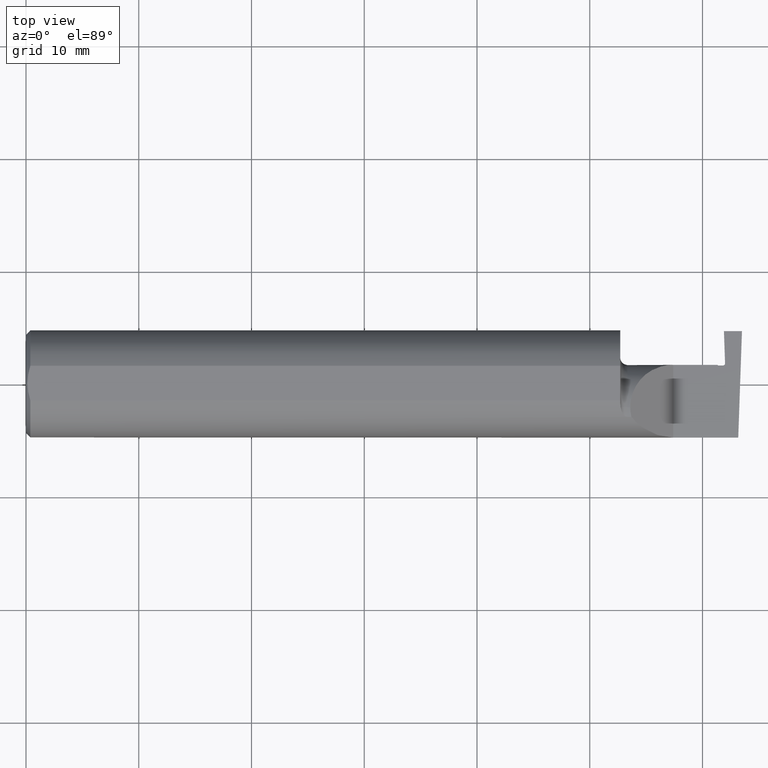
[diagram: clean part render]
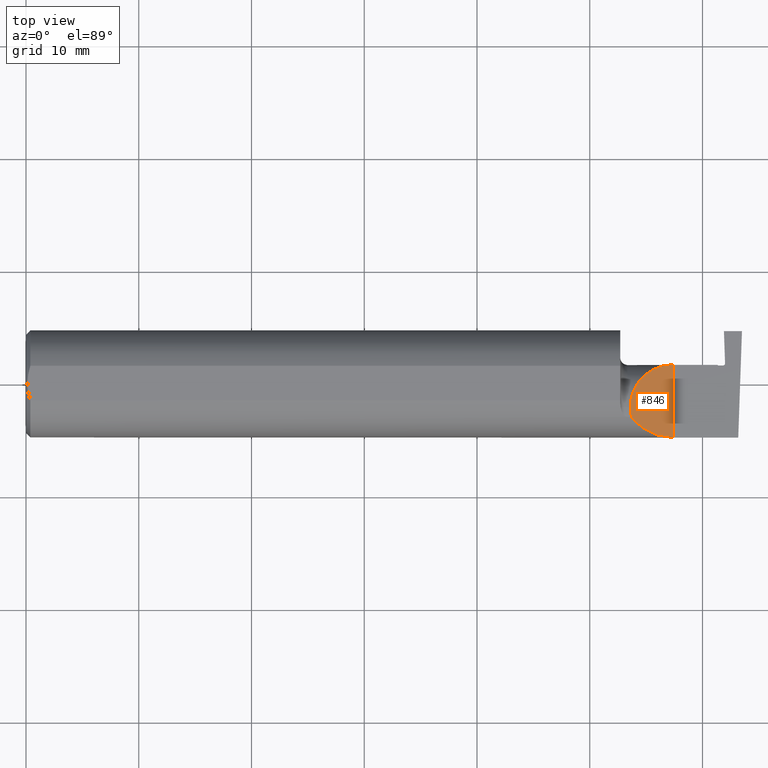
[diagram: same view with one face highlighted and labeled with its STEP entity id]
A machine part, top view. The second image highlights one B-rep face of the part: STEP entity #846.
In plain terms, the highlighted planar face has unit normal (-0.7071, 0, -0.7071).
Its self-contained STEP definition (entity closure, byte-faithful):
#5 = CARTESIAN_POINT ( 'NONE',  ( 2.110000000000000764, -0.09477667630339427218, 0.1499999999999999944 ) ) ;
#36 = CARTESIAN_POINT ( 'NONE',  ( 2.260000000000000231, -0.1873499999999999888, 2.939152317953647352E-17 ) ) ;
#45 = EDGE_LOOP ( 'NONE', ( #527, #342, #433, #863 ) ) ;
#64 = CARTESIAN_POINT ( 'NONE',  ( 2.110000000000001208, -0.08334999999999996578, 0.1499999999999999944 ) ) ;
#131 = CARTESIAN_POINT ( 'NONE',  ( 2.110000000000001208, -0.08334999999999996578, 0.1499999999999999944 ) ) ;
#153 =( BOUNDED_CURVE ( )  B_SPLINE_CURVE ( 3, ( #36, #273, #838, #999 ),
 .UNSPECIFIED., .F., .T. ) 
 B_SPLINE_CURVE_WITH_KNOTS ( ( 4, 4 ),
 ( 4.712388980384688786, 5.606916381293135743 ),
 .UNSPECIFIED. ) 
 CURVE ( )  GEOMETRIC_REPRESENTATION_ITEM ( )  RATIONAL_B_SPLINE_CURVE ( ( 1.000000000000000000, 0.9344226172588803170, 0.9344226172588803170, 1.000000000000000000 ) ) 
 REPRESENTATION_ITEM ( '' )  );
#160 = CARTESIAN_POINT ( 'NONE',  ( 2.111300037307155986, -0.1061291577212410964, 0.1486999626928445783 ) ) ;
#214 = FACE_OUTER_BOUND ( 'NONE', #45, .T. ) ;
#220 = CARTESIAN_POINT ( 'NONE',  ( 2.172132034355964691, 0.06665000000000001479, 0.08786796564403576149 ) ) ;
#237 = EDGE_CURVE ( 'NONE', #775, #853, #667, .T. ) ;
#247 = VERTEX_POINT ( 'NONE', #716 ) ;
#273 = CARTESIAN_POINT ( 'NONE',  ( 2.202189699843949189, -0.1873500000000000443, 0.05781030015605096578 ) ) ;
#324 = DIRECTION ( 'NONE',  ( -0.000000000000000000, 1.000000000000000000, -0.000000000000000000 ) ) ;
#342 = ORIENTED_EDGE ( 'NONE', *, *, #640, .F. ) ;
#348 = VERTEX_POINT ( 'NONE', #634 ) ;
#371 =( BOUNDED_CURVE ( )  B_SPLINE_CURVE ( 3, ( #816, #160, #5, #560 ),
 .UNSPECIFIED., .F., .T. ) 
 B_SPLINE_CURVE_WITH_KNOTS ( ( 4, 4 ),
 ( 6.055147272130140479, 6.283185307179586232 ),
 .UNSPECIFIED. ) 
 CURVE ( )  GEOMETRIC_REPRESENTATION_ITEM ( )  RATIONAL_B_SPLINE_CURVE ( ( 1.000000000000000000, 0.9956712472009929815, 0.9956712472009929815, 1.000000000000000000 ) ) 
 REPRESENTATION_ITEM ( '' )  );
#404 = LINE ( 'NONE', #735, #528 ) ;
#433 = ORIENTED_EDGE ( 'NONE', *, *, #1004, .T. ) ;
#458 = CARTESIAN_POINT ( 'NONE',  ( 2.260000000000000231, 0.06665000000000002867, 2.939152317953647352E-17 ) ) ;
#527 = ORIENTED_EDGE ( 'NONE', *, *, #949, .F. ) ;
#528 = VECTOR ( 'NONE', #324, 39.37007874015748143 ) ;
#560 = CARTESIAN_POINT ( 'NONE',  ( 2.110000000000001208, -0.08334999999999996578, 0.1499999999999999944 ) ) ;
#634 = CARTESIAN_POINT ( 'NONE',  ( 2.113883229301070532, -0.1172600179964009143, 0.1461167706989301707 ) ) ;
#640 = EDGE_CURVE ( 'NONE', #247, #348, #153, .T. ) ;
#667 =( BOUNDED_CURVE ( )  B_SPLINE_CURVE ( 3, ( #131, #1011, #220, #933 ),
 .UNSPECIFIED., .F., .T. ) 
 B_SPLINE_CURVE_WITH_KNOTS ( ( 4, 4 ),
 ( 0.000000000000000000, 1.570796326794896558 ),
 .UNSPECIFIED. ) 
 CURVE ( )  GEOMETRIC_REPRESENTATION_ITEM ( )  RATIONAL_B_SPLINE_CURVE ( ( 1.000000000000000000, 0.8047378541243649375, 0.8047378541243649375, 1.000000000000000000 ) ) 
 REPRESENTATION_ITEM ( '' )  );
#703 = CARTESIAN_POINT ( 'NONE',  ( 2.260000000000000231, -0.2000000000000000111, 2.939152317953647352E-17 ) ) ;
#715 = DIRECTION ( 'NONE',  ( -0.7071067811865454633, 0.000000000000000000, 0.7071067811865496822 ) ) ;
#716 = CARTESIAN_POINT ( 'NONE',  ( 2.260000000000000231, -0.1873499999999999888, 2.939152317953647352E-17 ) ) ;
#735 = CARTESIAN_POINT ( 'NONE',  ( 2.260000000000000231, -0.2000000000000000111, 2.939152317953647352E-17 ) ) ;
#775 = VERTEX_POINT ( 'NONE', #64 ) ;
#797 = PLANE ( 'NONE',  #1041 ) ;
#816 = CARTESIAN_POINT ( 'NONE',  ( 2.113883229301070532, -0.1172600179964009143, 0.1461167706989301707 ) ) ;
#838 = CARTESIAN_POINT ( 'NONE',  ( 2.150065971957467070, -0.1623470442677542591, 0.1099340280425335908 ) ) ;
#846 = ADVANCED_FACE ( 'NONE', ( #214 ), #797, .F. ) ;
#853 = VERTEX_POINT ( 'NONE', #458 ) ;
#863 = ORIENTED_EDGE ( 'NONE', *, *, #237, .F. ) ;
#933 = CARTESIAN_POINT ( 'NONE',  ( 2.260000000000000231, 0.06665000000000002867, 2.939152317953647352E-17 ) ) ;
#949 = EDGE_CURVE ( 'NONE', #348, #775, #371, .T. ) ;
#999 = CARTESIAN_POINT ( 'NONE',  ( 2.113883229301070532, -0.1172600179964009143, 0.1461167706989301707 ) ) ;
#1004 = EDGE_CURVE ( 'NONE', #247, #853, #404, .T. ) ;
#1011 = CARTESIAN_POINT ( 'NONE',  ( 2.110000000000001208, 0.004517965644035767080, 0.1500000000000000222 ) ) ;
#1013 = DIRECTION ( 'NONE',  ( -0.7071067811865496822, 0.000000000000000000, -0.7071067811865454633 ) ) ;
#1041 = AXIS2_PLACEMENT_3D ( 'NONE', #703, #1013, #715 ) ;